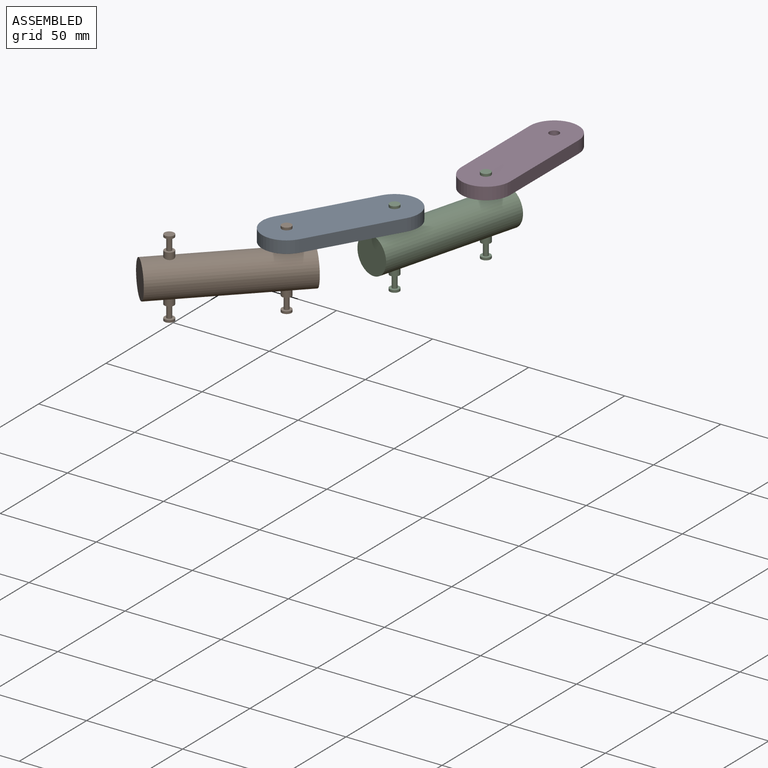
[diagram: assembled view]
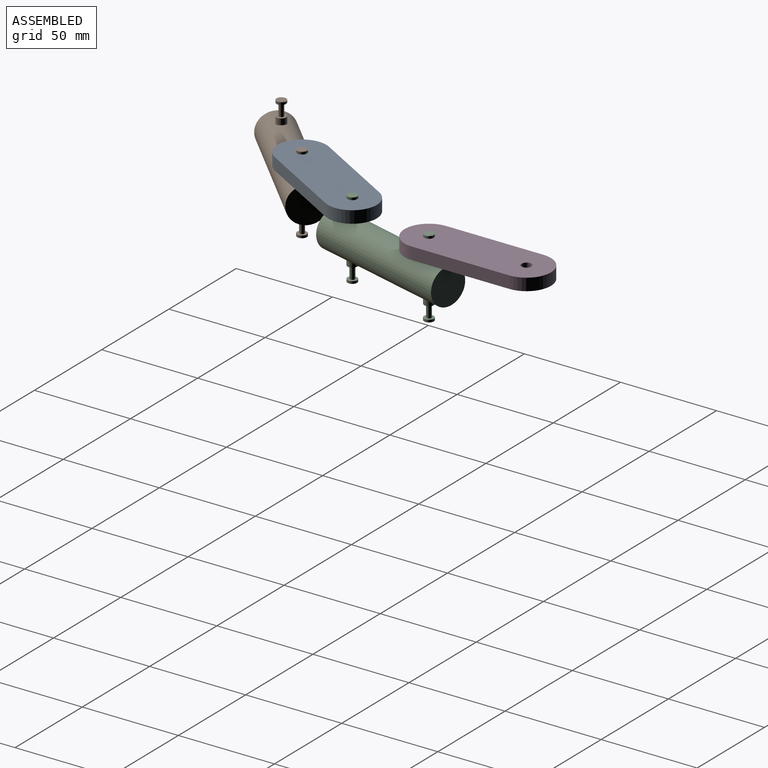
[diagram: assembled view, second angle]
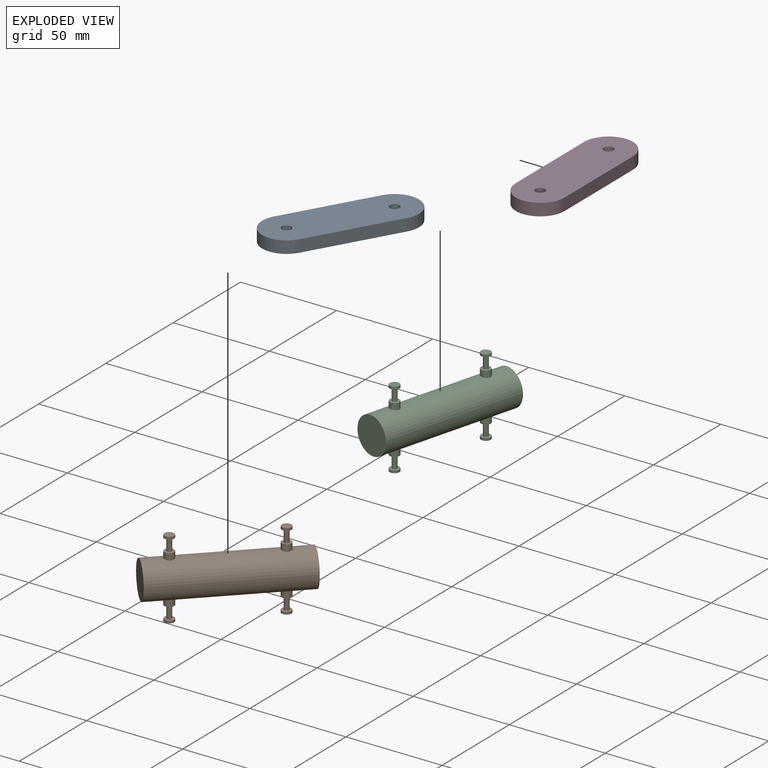
[diagram: exploded view]
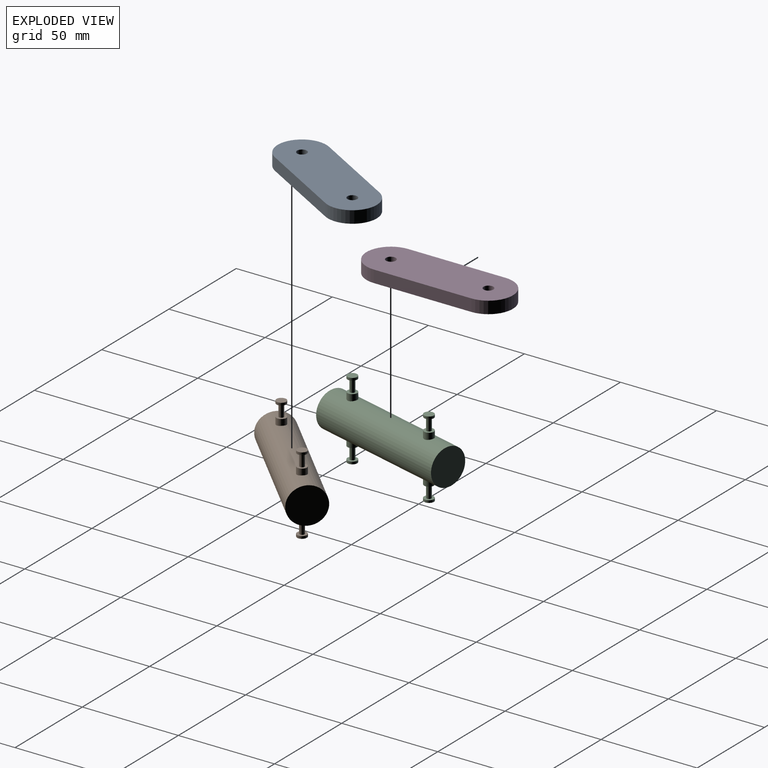
[diagram: exploded view, second angle]
ASSEMBLY  parts=4 mates=3
PART A: 8 faces, bbox 25.4x76.2x6.4 mm
  f0: plane 76.2x25.4mm, normal (0,0,1), area 1756.5mm2, adj f1,f2,f4,f5,f6,f7
  f1: cylinder r=12.7mm len=25.4mm, axis (0,0,-1), area 253.4mm2, adj f0,f2,f3,f5
  f2: plane 50.8x6.35mm, normal (-1,0,0), area 322.6mm2, adj f0,f1,f3,f6
  f3: plane 76.2x25.4mm, normal (0,0,-1), area 1756.5mm2, adj f1,f2,f4,f5,f6,f7
  f4: cylinder r=2.54mm len=6.35mm, axis (0,0,-1), area 101.3mm2, adj f0,f3
  f5: plane 50.8x6.35mm, normal (1,0,0), area 322.6mm2, adj f0,f1,f3,f6
  f6: cylinder r=12.7mm len=25.4mm, axis (0,0,-1), area 253.4mm2, adj f0,f2,f3,f5
  f7: cylinder r=2.54mm len=6.35mm, axis (0,0,-1), area 101.3mm2, adj f0,f3
PART B: 27 faces, bbox 19.1x76.2x40.6 mm
  f0: cylinder r=9.53mm len=76.2mm, axis (0,1,0), area 4478.6mm2, adj f1,f2,f8,f9,f20,f21
  f1: plane 19.05x19.05mm, normal (0,-1,0), area 285mm2, adj f0
  f2: plane 19.05x19.05mm, normal (0,1,0), area 285mm2, adj f0
  f3: plane 5.08x5.08mm, normal (0,0,-1), area 20.3mm2, adj f4
  f4: cylinder r=2.54mm len=5.08mm, axis (0,0,-1), area 20.3mm2, adj f3,f5
  f5: plane 5.08x5.08mm, normal (0,0,1), area 15.2mm2, adj f4,f6
  f6: cylinder r=1.27mm len=6.35mm, axis (0,0,-1), area 50.7mm2, adj f5,f7
  f7: plane 5.08x5.08mm, normal (0,0,-1), area 15.2mm2, adj f6,f8
  f8: cylinder r=2.54mm len=5.08mm, axis (0,0,-1), area 53.4mm2, adj f0,f7
  f9: cylinder r=2.54mm len=5.08mm, axis (0,0,-1), area 53.4mm2, adj f0,f14
  f10: plane 5.08x5.08mm, normal (0,0,1), area 20.3mm2, adj f11
  f11: cylinder r=2.54mm len=5.08mm, axis (0,0,-1), area 20.3mm2, adj f10,f12
  f12: plane 5.08x5.08mm, normal (0,0,-1), area 15.2mm2, adj f11,f13
  f13: cylinder r=1.27mm len=6.35mm, axis (0,0,-1), area 50.7mm2, adj f12,f14
  f14: plane 5.08x5.08mm, normal (0,0,1), area 15.2mm2, adj f9,f13
  f15: plane 5.08x5.08mm, normal (0,0,-1), area 20.3mm2, adj f16
  f16: cylinder r=2.54mm len=5.08mm, axis (0,0,-1), area 20.3mm2, adj f15,f17
  f17: plane 5.08x5.08mm, normal (0,0,1), area 15.2mm2, adj f16,f18
  f18: cylinder r=1.27mm len=6.35mm, axis (0,0,-1), area 50.7mm2, adj f17,f19
  f19: plane 5.08x5.08mm, normal (0,0,-1), area 15.2mm2, adj f18,f20
  f20: cylinder r=2.54mm len=5.08mm, axis (0,0,-1), area 53.4mm2, adj f0,f19
  f21: cylinder r=2.54mm len=5.08mm, axis (0,0,-1), area 53.4mm2, adj f0,f22
  f22: plane 5.08x5.08mm, normal (0,0,1), area 15.2mm2, adj f21,f23
  f23: cylinder r=1.27mm len=6.35mm, axis (0,0,-1), area 50.7mm2, adj f22,f24
  f24: plane 5.08x5.08mm, normal (0,0,-1), area 15.2mm2, adj f23,f25
  f25: cylinder r=2.54mm len=5.08mm, axis (0,0,-1), area 20.3mm2, adj f24,f26
  f26: plane 5.08x5.08mm, normal (0,0,1), area 20.3mm2, adj f25
PART C: same geometry as B
PART D: same geometry as A
PLACE A rot(axis=(0,0,-1),30deg) t=(-51.25,-89.66,0)mm
PLACE B rot(axis=(0,0,-1),45deg) t=(-56.51,-85.62,0)mm
PLACE C rot(axis=(0,0,-1),15deg) t=(-6.57,0.87,0)mm
PLACE D at identity
MATE revolute D.f1 <-> C.f16  axis (0,0,-1) through (0,25.4,12.7)mm
MATE revolute A.f1 <-> B.f16  axis (0,0,-1) through (-38.55,-67.66,12.7)mm
MATE revolute A.f6 <-> C.f4  axis (0,0,-1) through (-13.15,-23.67,12.7)mm
